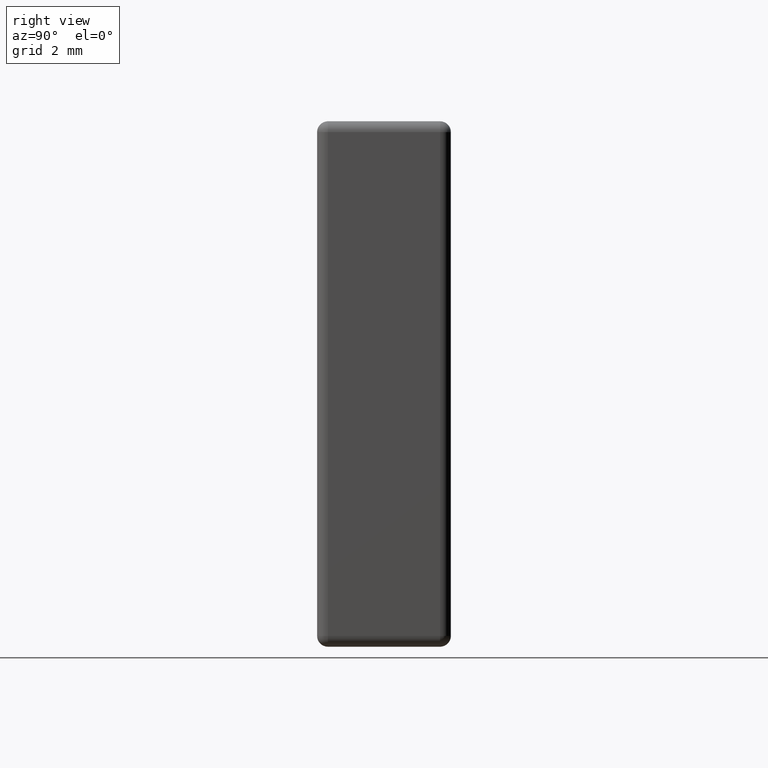
[diagram: clean part render]
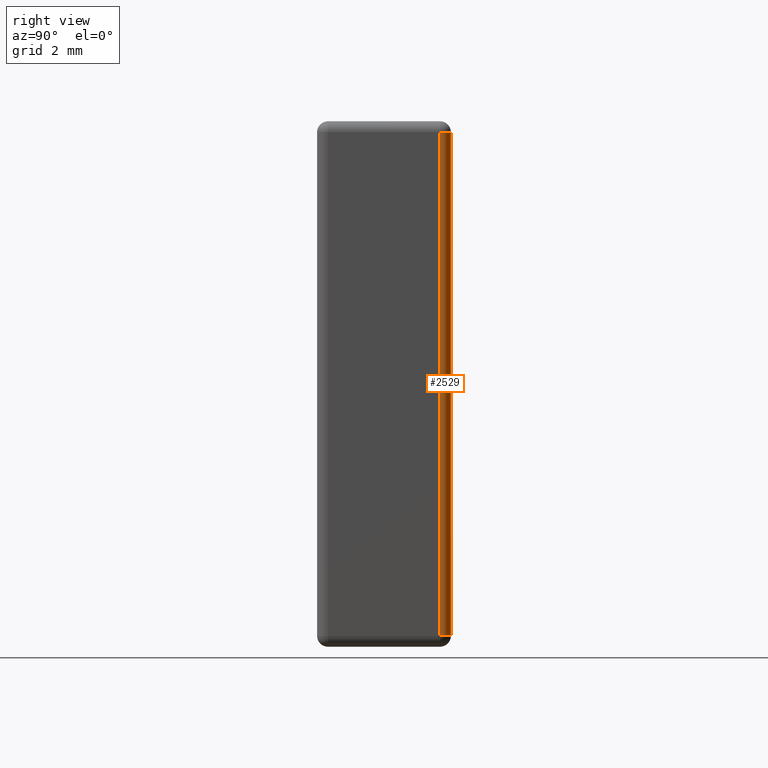
[diagram: same view with one face highlighted and labeled with its STEP entity id]
A machine part, right view. The second image highlights one B-rep face of the part: STEP entity #2529.
In plain terms, the highlighted cylindrical surface (edge-blend (fillet) strip) has radius 0.2205 mm, axis along (0, 0, 1).
Its self-contained STEP definition (entity closure, byte-faithful):
#57 = DIRECTION ( 'NONE',  ( 0.000000000000000000, 0.000000000000000000, 1.000000000000000000 ) ) ;
#154 = CARTESIAN_POINT ( 'NONE',  ( 9.900000000000000355, 2.479520000000000390, -10.37951999999999941 ) ) ;
#474 = DIRECTION ( 'NONE',  ( 0.000000000000000000, 0.000000000000000000, 1.000000000000000000 ) ) ;
#788 = DIRECTION ( 'NONE',  ( -1.000000000000000000, 0.000000000000000000, 0.000000000000000000 ) ) ;
#955 = AXIS2_PLACEMENT_3D ( 'NONE', #3929, #3633, #788 ) ;
#1016 = EDGE_CURVE ( 'NONE', #2102, #2076, #2962, .T. ) ;
#1032 = CARTESIAN_POINT ( 'NONE',  ( 9.900000000000000355, 2.479520000000000390, -0.2204799999999999816 ) ) ;
#1084 = ORIENTED_EDGE ( 'NONE', *, *, #1124, .F. ) ;
#1124 = EDGE_CURVE ( 'NONE', #3145, #3146, #2080, .T. ) ;
#1378 = EDGE_CURVE ( 'NONE', #3146, #2102, #2497, .T. ) ;
#1397 = DIRECTION ( 'NONE',  ( -0.000000000000000000, -0.000000000000000000, -1.000000000000000000 ) ) ;
#1536 = CARTESIAN_POINT ( 'NONE',  ( 9.679520000000000124, 2.479520000000000390, -0.2204799999999999816 ) ) ;
#2041 = ORIENTED_EDGE ( 'NONE', *, *, #1016, .F. ) ;
#2076 = VERTEX_POINT ( 'NONE', #154 ) ;
#2080 = CIRCLE ( 'NONE', #3702, 0.2204800000000003424 ) ;
#2102 = VERTEX_POINT ( 'NONE', #4445 ) ;
#2123 = CARTESIAN_POINT ( 'NONE',  ( 9.679520000000000124, 2.479520000000000390, 0.000000000000000000 ) ) ;
#2129 = CARTESIAN_POINT ( 'NONE',  ( 9.679520000000000124, 2.700000000000000178, -0.2204799999999999816 ) ) ;
#2430 = CYLINDRICAL_SURFACE ( 'NONE', #3879, 0.2204800000000003424 ) ;
#2477 = VECTOR ( 'NONE', #474, 1000.000000000000000 ) ;
#2497 = LINE ( 'NONE', #4542, #3042 ) ;
#2529 = ADVANCED_FACE ( 'NONE', ( #3491 ), #2430, .T. ) ;
#2962 = CIRCLE ( 'NONE', #955, 0.2204800000000003424 ) ;
#3042 = VECTOR ( 'NONE', #1397, 1000.000000000000000 ) ;
#3110 = EDGE_LOOP ( 'NONE', ( #1084, #3526, #2041, #4436 ) ) ;
#3145 = VERTEX_POINT ( 'NONE', #1032 ) ;
#3146 = VERTEX_POINT ( 'NONE', #2129 ) ;
#3216 = EDGE_CURVE ( 'NONE', #2076, #3145, #4011, .T. ) ;
#3491 = FACE_OUTER_BOUND ( 'NONE', #3110, .T. ) ;
#3526 = ORIENTED_EDGE ( 'NONE', *, *, #3216, .F. ) ;
#3532 = DIRECTION ( 'NONE',  ( 1.000000000000000000, 0.000000000000000000, 0.000000000000000000 ) ) ;
#3633 = DIRECTION ( 'NONE',  ( 0.000000000000000000, 0.000000000000000000, -1.000000000000000000 ) ) ;
#3702 = AXIS2_PLACEMENT_3D ( 'NONE', #1536, #57, #4351 ) ;
#3879 = AXIS2_PLACEMENT_3D ( 'NONE', #2123, #3897, #3532 ) ;
#3897 = DIRECTION ( 'NONE',  ( 0.000000000000000000, 0.000000000000000000, 1.000000000000000000 ) ) ;
#3929 = CARTESIAN_POINT ( 'NONE',  ( 9.679520000000000124, 2.479520000000000390, -10.37951999999999941 ) ) ;
#4011 = LINE ( 'NONE', #4307, #2477 ) ;
#4307 = CARTESIAN_POINT ( 'NONE',  ( 9.900000000000000355, 2.479520000000000390, 0.000000000000000000 ) ) ;
#4351 = DIRECTION ( 'NONE',  ( 1.000000000000000000, 0.000000000000000000, 0.000000000000000000 ) ) ;
#4436 = ORIENTED_EDGE ( 'NONE', *, *, #1378, .F. ) ;
#4445 = CARTESIAN_POINT ( 'NONE',  ( 9.679520000000000124, 2.700000000000000178, -10.37951999999999941 ) ) ;
#4542 = CARTESIAN_POINT ( 'NONE',  ( 9.679520000000000124, 2.700000000000000178, 0.000000000000000000 ) ) ;